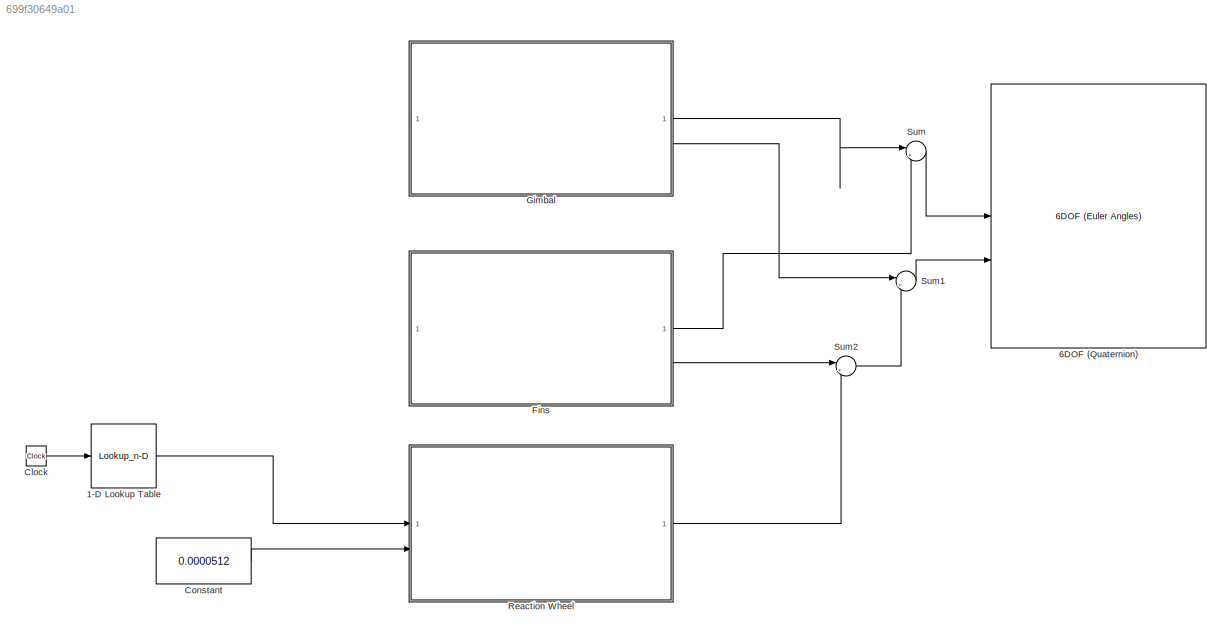
MODEL slx_699f30649a01
KIND model
CONFIG AbsTol = auto
CONFIG EnableMultiTasking = off
CONFIG FixedStep = auto
CONFIG MaxStep = auto
CONFIG MinStep = auto
CONFIG RelTol = 1e-3
CONFIG SampleTimeConstraint = Unconstrained
CONFIG SolverName = VariableStepAuto
CONFIG StartTime = 0.0
CONFIG StopTime = 10.0
BLOCK [Lookup_n-D] 1-D Lookup Table
  BreakpointsForDimension1 = [0;2;4;6;8;10]
  InputPortMap = u0
  InternalRulePriority = Speed
  NumberOfTableDimensions = 1
  RndMeth = Simplest
  Table = [0;800;1600;2400;3200;4000]
BLOCK [Reference] 6DOF (Quaternion)  REF=shared6dof/6DOF (Euler Angles)
  LibrarySourceBlock = aerolib6dof2/6DOF (Quaternion)
  SourceBlock = shared6dof/6DOF (Euler Angles)
  SourceType = 6DOF EoM (Body Axis)
BLOCK [Clock] Clock
BLOCK [Constant] Constant
  Value = 0.0000512
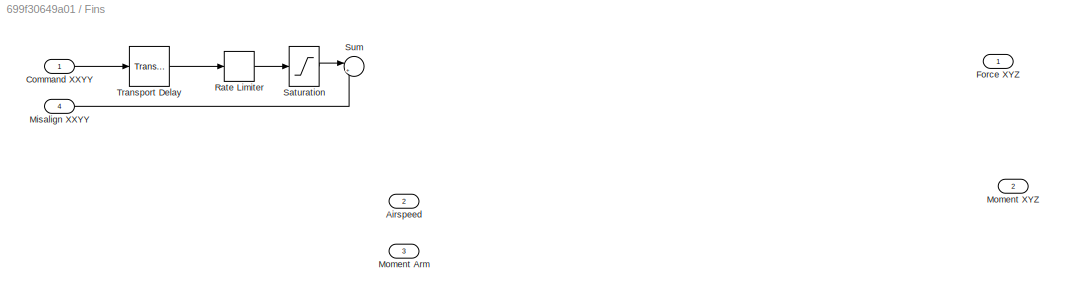
BLOCK [SubSystem] Fins
BLOCK [Inport] Fins/Airspeed
  IconDisplay = Port number and signal name
  Port = 2
  PortDimensions = 1
BLOCK [Inport] Fins/Command XXYY
  IconDisplay = Port number and signal name
  PortDimensions = 4
BLOCK [Outport] Fins/Force XYZ
  PortDimensions = 3
BLOCK [Inport] Fins/Misalign XXYY
  IconDisplay = Port number and signal name
  Port = 4
  PortDimensions = 4
BLOCK [Inport] Fins/Moment Arm
  IconDisplay = Port number and signal name
  Port = 3
  PortDimensions = 1
BLOCK [Outport] Fins/Moment XYZ
  Port = 2
  PortDimensions = 3
BLOCK [RateLimiter] Fins/Rate Limiter
  FallingSlewLimit = -0.9
  RisingSlewLimit = 0.9
BLOCK [Saturate] Fins/Saturation
  LowerLimit = -0.0872665
  UpperLimit = 0.0872665
BLOCK [Sum] Fins/Sum
  Inputs = |++
BLOCK [TransportDelay] Fins/Transport Delay
  DelayTime = 0.03
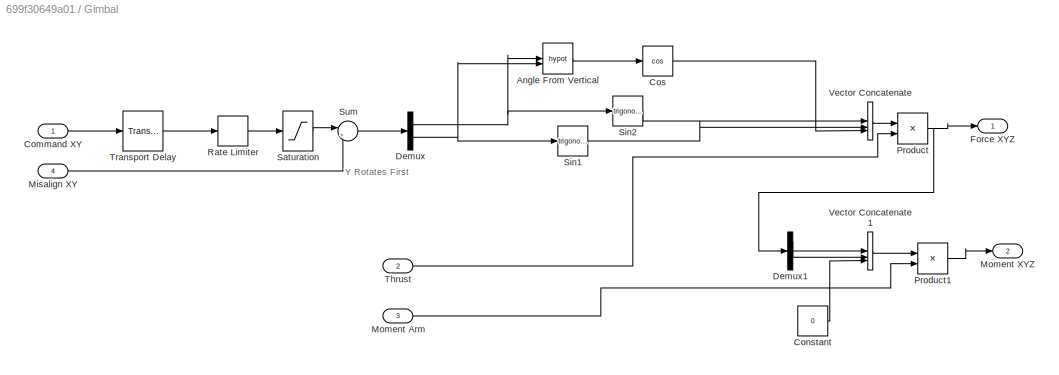
BLOCK [SubSystem] Gimbal
BLOCK [Math] Gimbal/Angle From Vertical
  Operator = hypot
BLOCK [Inport] Gimbal/Command XY
  IconDisplay = Port number and signal name
  PortDimensions = 2
BLOCK [Constant] Gimbal/Constant
  Value = 0
BLOCK [Trigonometry] Gimbal/Cos
  Operator = cos
BLOCK [Demux] Gimbal/Demux
  Outputs = 2
BLOCK [Demux] Gimbal/Demux1
  Outputs = 3
BLOCK [Outport] Gimbal/Force XYZ
  PortDimensions = 3
BLOCK [Inport] Gimbal/Misalign XY
  IconDisplay = Port number and signal name
  Port = 4
  PortDimensions = 2
BLOCK [Inport] Gimbal/Moment Arm
  IconDisplay = Port number and signal name
  Port = 3
  PortDimensions = 1
BLOCK [Outport] Gimbal/Moment XYZ
  Port = 2
  PortDimensions = 3
BLOCK [Product] Gimbal/Product
BLOCK [Product] Gimbal/Product1
BLOCK [RateLimiter] Gimbal/Rate Limiter
  FallingSlewLimit = -0.9
  RisingSlewLimit = 0.9
BLOCK [Saturate] Gimbal/Saturation
  LowerLimit = -0.0872665
  UpperLimit = 0.0872665
BLOCK [Trigonometry] Gimbal/Sin1
BLOCK [Trigonometry] Gimbal/Sin2
BLOCK [Sum] Gimbal/Sum
  Inputs = |++
BLOCK [Inport] Gimbal/Thrust
  IconDisplay = Port number and signal name
  Port = 2
  PortDimensions = 1
BLOCK [TransportDelay] Gimbal/Transport Delay
  DelayTime = 0.03
BLOCK [Concatenate] Gimbal/Vector Concatenate
  NumInputs = 3
BLOCK [Concatenate] Gimbal/Vector Concatenate1
  NumInputs = 3
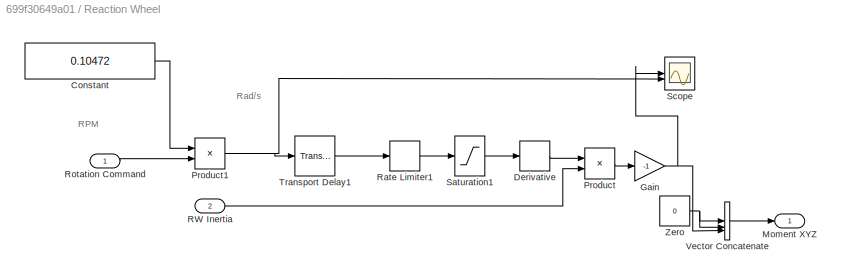
BLOCK [SubSystem] Reaction Wheel
BLOCK [Constant] Reaction Wheel/Constant
  Value = 0.10472
BLOCK [Derivative] Reaction Wheel/Derivative
BLOCK [Gain] Reaction Wheel/Gain
  Gain = -1
BLOCK [Outport] Reaction Wheel/Moment XYZ
  PortDimensions = 3
BLOCK [Product] Reaction Wheel/Product
BLOCK [Product] Reaction Wheel/Product1
BLOCK [Inport] Reaction Wheel/RW Inertia
  IconDisplay = Port number and signal name
  Port = 2
  PortDimensions = 1
BLOCK [RateLimiter] Reaction Wheel/Rate Limiter1
  FallingSlewLimit = -1000
  RisingSlewLimit = 1000
BLOCK [Inport] Reaction Wheel/Rotation Command
  IconDisplay = Port number and signal name
  PortDimensions = 1
BLOCK [Saturate] Reaction Wheel/Saturation1
  LowerLimit = -4200
  UpperLimit = 4200
BLOCK [Scope] Reaction Wheel/Scope
  Floating = off
  NumInputPorts = 2
  ScopeSpecificationString = Simulink.scopes.TimeScopeBlockCfg('CurrentConfiguration', extmgr.ConfigurationSet(extmgr.Configuration('Core','General UI',true),extmgr.Configuration('Core','Source UI',true),extmgr.Configuration('Sources','WiredSimulink',true,'DataLoggingVariableName','ScopeData1'),extmgr.Configuration('Visuals','Time Domain',true,'SerializedDisplays',{struct('MinYLimReal','-52.4176','MaxYLimReal','471.2464','YLa...<+1535ch>
BLOCK [TransportDelay] Reaction Wheel/Transport Delay1
  DelayTime = 0.03
BLOCK [Concatenate] Reaction Wheel/Vector Concatenate
  NumInputs = 3
BLOCK [Constant] Reaction Wheel/Zero
  OutDataTypeStr = Inherit: Inherit via back propagation
  Value = 0
BLOCK [Sum] Sum
  Inputs = |++
BLOCK [Sum] Sum1
  Inputs = |++
BLOCK [Sum] Sum2
  Inputs = |++
ANNOTATION Gimbal: Y Rotates First
ANNOTATION Reaction Wheel: RPM
ANNOTATION Reaction Wheel: Rad/s
LINE 1-D Lookup Table:1 -> Reaction Wheel:1
LINE Clock:1 -> 1-D Lookup Table:1
LINE Constant:1 -> Reaction Wheel:2
LINE Fins/Command XXYY:1 -> Fins/Transport Delay:1
LINE Fins/Misalign XXYY:1 -> Fins/Sum:2
LINE Fins/Rate Limiter:1 -> Fins/Saturation:1
LINE Fins/Saturation:1 -> Fins/Sum:1
LINE Fins/Transport Delay:1 -> Fins/Rate Limiter:1
LINE Fins:1 -> Sum:2
LINE Fins:2 -> Sum2:1
LINE Gimbal/Angle From Vertical:1 -> Gimbal/Cos:1
LINE Gimbal/Command XY:1 -> Gimbal/Transport Delay:1
LINE Gimbal/Constant:1 -> Gimbal/Vector Concatenate1:3
LINE Gimbal/Cos:1 -> Gimbal/Vector Concatenate:3
LINE Gimbal/Demux1:1 -> Gimbal/Vector Concatenate1:1
LINE Gimbal/Demux1:2 -> Gimbal/Vector Concatenate1:2
NET Gimbal/Demux:1 -> Gimbal/Angle From Vertical:1, Gimbal/Sin2:1
NET Gimbal/Demux:2 -> Gimbal/Angle From Vertical:2, Gimbal/Sin1:1
LINE Gimbal/Misalign XY:1 -> Gimbal/Sum:2
LINE Gimbal/Moment Arm:1 -> Gimbal/Product1:2
LINE Gimbal/Product1:1 -> Gimbal/Moment XYZ:1
NET Gimbal/Product:1 -> Gimbal/Demux1:1, Gimbal/Force XYZ:1
LINE Gimbal/Rate Limiter:1 -> Gimbal/Saturation:1
LINE Gimbal/Saturation:1 -> Gimbal/Sum:1
LINE Gimbal/Sin1:1 -> Gimbal/Vector Concatenate:2
LINE Gimbal/Sin2:1 -> Gimbal/Vector Concatenate:1
LINE Gimbal/Sum:1 -> Gimbal/Demux:1
LINE Gimbal/Thrust:1 -> Gimbal/Product:2
LINE Gimbal/Transport Delay:1 -> Gimbal/Rate Limiter:1
LINE Gimbal/Vector Concatenate1:1 -> Gimbal/Product1:1
LINE Gimbal/Vector Concatenate:1 -> Gimbal/Product:1
LINE Gimbal:1 -> Sum:1
LINE Gimbal:2 -> Sum1:1
LINE Reaction Wheel/Constant:1 -> Reaction Wheel/Product1:1
LINE Reaction Wheel/Derivative:1 -> Reaction Wheel/Product:1
NET Reaction Wheel/Gain:1 -> Reaction Wheel/Scope:1, Reaction Wheel/Vector Concatenate:3
NET Reaction Wheel/Product1:1 -> Reaction Wheel/Scope:2, Reaction Wheel/Transport Delay1:1
LINE Reaction Wheel/Product:1 -> Reaction Wheel/Gain:1
LINE Reaction Wheel/RW Inertia:1 -> Reaction Wheel/Product:2
LINE Reaction Wheel/Rate Limiter1:1 -> Reaction Wheel/Saturation1:1
LINE Reaction Wheel/Rotation Command:1 -> Reaction Wheel/Product1:2
LINE Reaction Wheel/Saturation1:1 -> Reaction Wheel/Derivative:1
LINE Reaction Wheel/Transport Delay1:1 -> Reaction Wheel/Rate Limiter1:1
LINE Reaction Wheel/Vector Concatenate:1 -> Reaction Wheel/Moment XYZ:1
NET Reaction Wheel/Zero:1 -> Reaction Wheel/Vector Concatenate:1, Reaction Wheel/Vector Concatenate:2
LINE Reaction Wheel:1 -> Sum2:2
LINE Sum1:1 -> 6DOF (Quaternion):2
LINE Sum2:1 -> Sum1:2
LINE Sum:1 -> 6DOF (Quaternion):1
note: NET lines group one-source signal fan-out (src -> all destinations, sorted); 1:1 wires keep LINE
